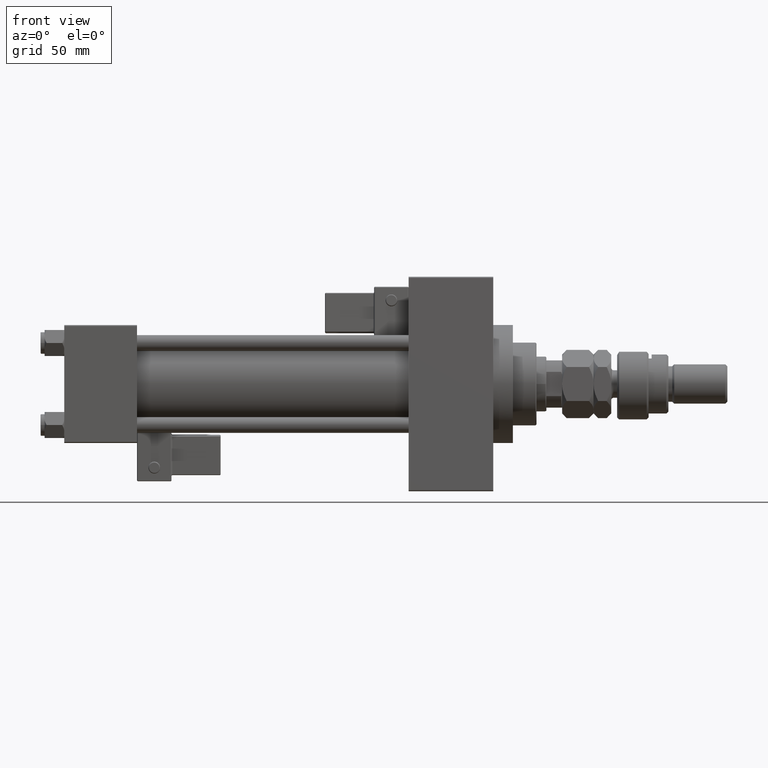
[diagram: clean part render]
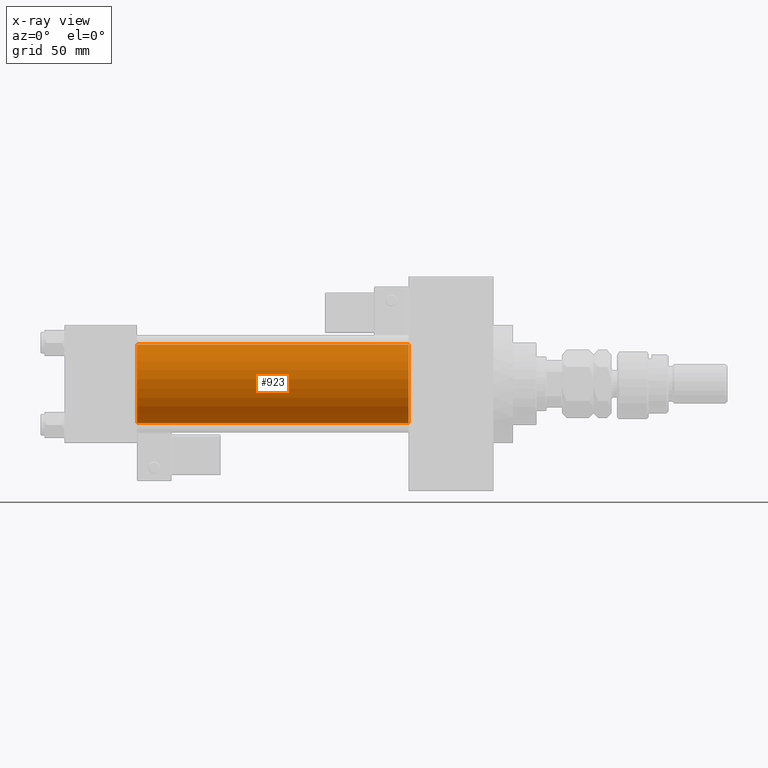
[diagram: x-ray — body ghosted, one internal face saturated and labeled with its STEP entity id]
A machine part, front view, then the same camera in x-ray: the body is ghosted and one INTERNAL B-rep face — a face not visible from any outside direction — is saturated and labeled: STEP entity #923.
In plain terms, the highlighted cylindrical surface (partial cylindrical patch) has radius 20 mm, axis along (-1, -0, -0).
Its self-contained STEP definition (entity closure, byte-faithful):
#114 = FACE_OUTER_BOUND ( 'NONE', #22365, .T. ) ;
#923 = ADVANCED_FACE ( 'NONE', ( #114 ), #5054, .F. ) ;
#1285 = AXIS2_PLACEMENT_3D ( 'NONE', #46247, #8393, #33809 ) ;
#3128 = ORIENTED_EDGE ( 'NONE', *, *, #30711, .T. ) ;
#4188 = CARTESIAN_POINT ( 'NONE',  ( 37.00000000000000000, -2.602085213965210642E-15, 20.00000000000000000 ) ) ;
#4771 = DIRECTION ( 'NONE',  ( -1.000000000000000000, -0.000000000000000000, -0.000000000000000000 ) ) ;
#4804 = DIRECTION ( 'NONE',  ( -1.000000000000000000, -0.000000000000000000, -0.000000000000000000 ) ) ;
#5054 = CYLINDRICAL_SURFACE ( 'NONE', #1285, 20.00000000000000000 ) ;
#5512 = CARTESIAN_POINT ( 'NONE',  ( 175.0000000000000284, -2.602085213965210642E-15, 0.000000000000000000 ) ) ;
#8393 = DIRECTION ( 'NONE',  ( -1.000000000000000000, -0.000000000000000000, -0.000000000000000000 ) ) ;
#10926 = ORIENTED_EDGE ( 'NONE', *, *, #44831, .F. ) ;
#14421 = LINE ( 'NONE', #34608, #16432 ) ;
#15187 = VERTEX_POINT ( 'NONE', #27867 ) ;
#16432 = VECTOR ( 'NONE', #4771, 1000.000000000000000 ) ;
#17430 = CARTESIAN_POINT ( 'NONE',  ( 37.00000000000000000, -1.527916156705042519E-16, -20.00000000000000000 ) ) ;
#19136 = AXIS2_PLACEMENT_3D ( 'NONE', #32626, #50312, #33175 ) ;
#21567 = DIRECTION ( 'NONE',  ( 0.000000000000000000, 0.000000000000000000, -1.000000000000000000 ) ) ;
#21951 = CARTESIAN_POINT ( 'NONE',  ( 175.0000000000000284, -2.602085213965210642E-15, 20.00000000000000000 ) ) ;
#22365 = EDGE_LOOP ( 'NONE', ( #45798, #3128, #35942, #10926 ) ) ;
#22968 = VERTEX_POINT ( 'NONE', #4188 ) ;
#25327 = VERTEX_POINT ( 'NONE', #26800 ) ;
#26800 = CARTESIAN_POINT ( 'NONE',  ( 175.0000000000000284, -2.602085213965210642E-15, 20.00000000000000000 ) ) ;
#27867 = CARTESIAN_POINT ( 'NONE',  ( 175.0000000000000284, -1.527916156705042519E-16, -20.00000000000000000 ) ) ;
#30711 = EDGE_CURVE ( 'NONE', #15187, #35107, #14421, .T. ) ;
#31520 = LINE ( 'NONE', #21951, #42016 ) ;
#32626 = CARTESIAN_POINT ( 'NONE',  ( 37.00000000000000000, -2.602085213965210642E-15, 0.000000000000000000 ) ) ;
#33175 = DIRECTION ( 'NONE',  ( 0.000000000000000000, 0.000000000000000000, -1.000000000000000000 ) ) ;
#33809 = DIRECTION ( 'NONE',  ( 0.000000000000000000, 0.000000000000000000, 1.000000000000000000 ) ) ;
#34608 = CARTESIAN_POINT ( 'NONE',  ( 175.0000000000000284, -1.527916156705042519E-16, -20.00000000000000000 ) ) ;
#35107 = VERTEX_POINT ( 'NONE', #17430 ) ;
#35942 = ORIENTED_EDGE ( 'NONE', *, *, #46860, .F. ) ;
#39221 = DIRECTION ( 'NONE',  ( 1.000000000000000000, 0.000000000000000000, 0.000000000000000000 ) ) ;
#40349 = AXIS2_PLACEMENT_3D ( 'NONE', #5512, #39221, #21567 ) ;
#42016 = VECTOR ( 'NONE', #4804, 1000.000000000000000 ) ;
#44831 = EDGE_CURVE ( 'NONE', #25327, #22968, #31520, .T. ) ;
#45798 = ORIENTED_EDGE ( 'NONE', *, *, #49890, .T. ) ;
#46247 = CARTESIAN_POINT ( 'NONE',  ( 175.0000000000000284, -2.602085213965210642E-15, 0.000000000000000000 ) ) ;
#46470 = CIRCLE ( 'NONE', #19136, 20.00000000000000000 ) ;
#46860 = EDGE_CURVE ( 'NONE', #22968, #35107, #46470, .T. ) ;
#49158 = CIRCLE ( 'NONE', #40349, 20.00000000000000000 ) ;
#49890 = EDGE_CURVE ( 'NONE', #25327, #15187, #49158, .T. ) ;
#50312 = DIRECTION ( 'NONE',  ( 1.000000000000000000, 0.000000000000000000, 0.000000000000000000 ) ) ;